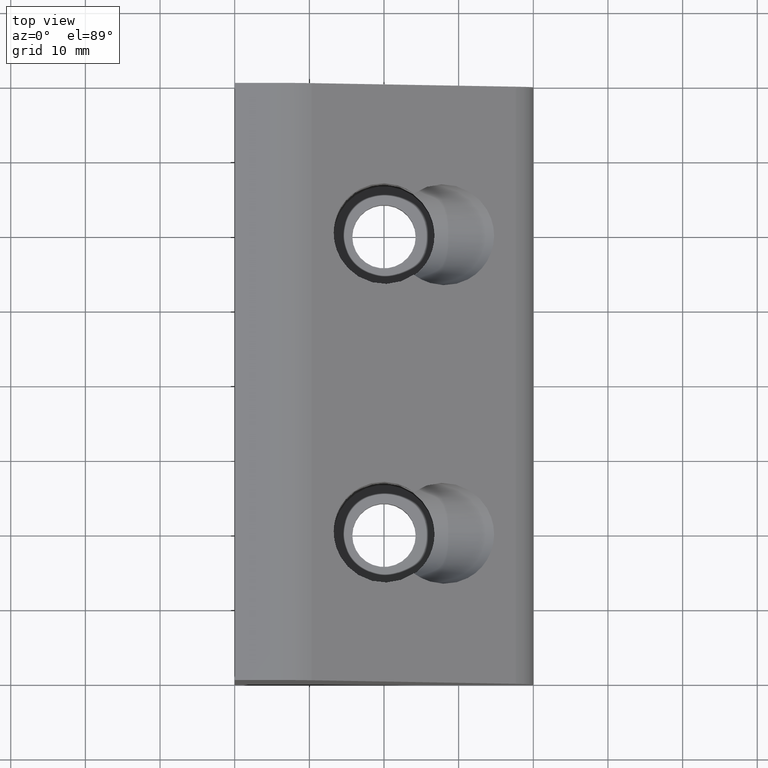
[diagram: clean part render]
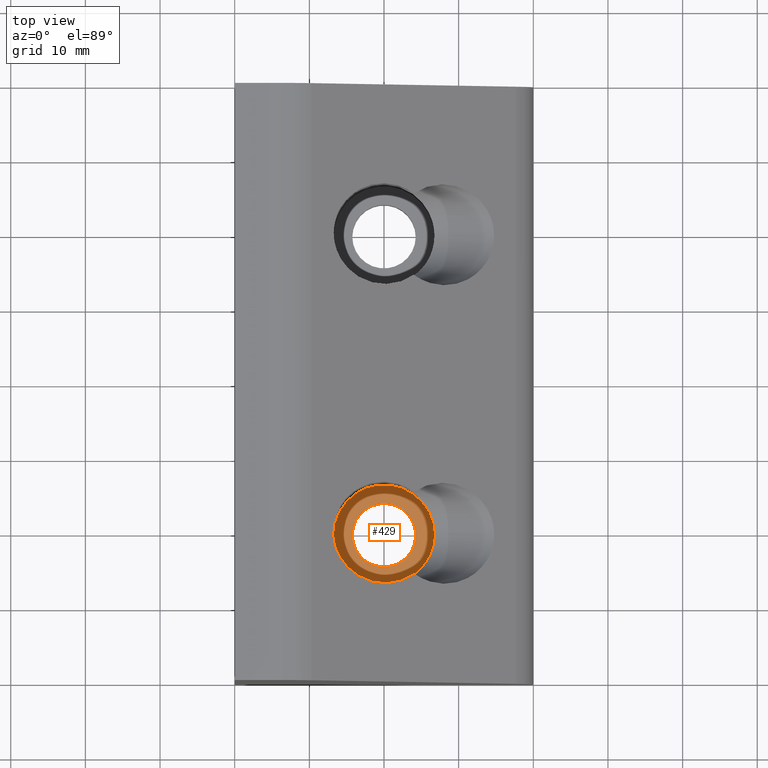
[diagram: same view with one face highlighted and labeled with its STEP entity id]
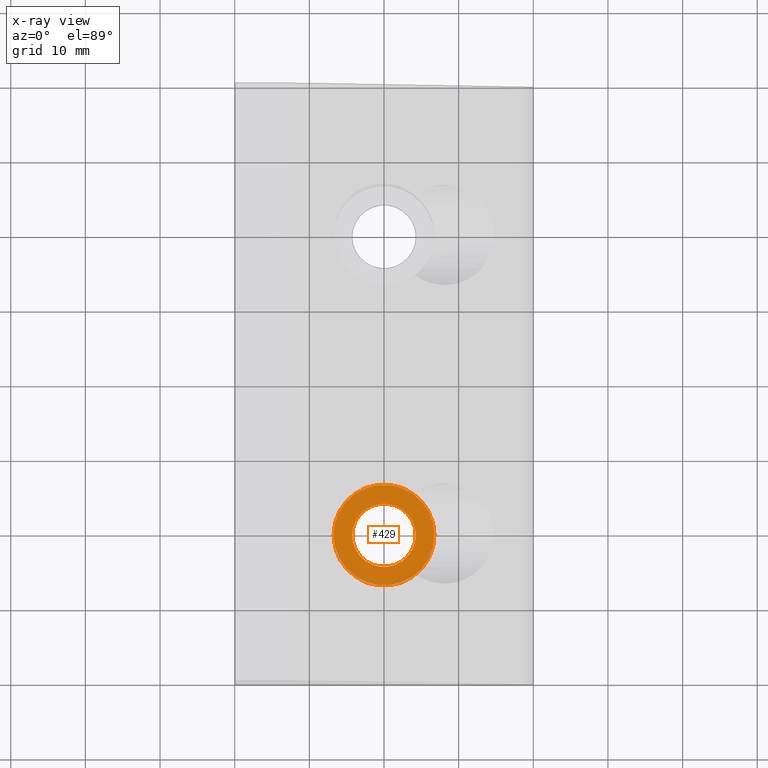
[diagram: x-ray of the same camera — body ghosted, the highlighted face saturated]
A machine part, top view. The second image highlights one B-rep face of the part: STEP entity #429.
The next image is the same camera in x-ray: the body ghosted, the highlighted face saturated — about 6% of this face is hidden behind the body in this view.
In plain terms, the highlighted planar face has unit normal (0, 0, -1).
Its self-contained STEP definition (entity closure, byte-faithful):
#21=FACE_BOUND('',#88,.T.);
#33=PLANE('',#511);
#56=FACE_OUTER_BOUND('',#87,.T.);
#87=EDGE_LOOP('',(#375));
#88=EDGE_LOOP('',(#376));
#99=CIRCLE('',#469,6.75);
#101=CIRCLE('',#472,4.25);
#189=VERTEX_POINT('',#685);
#191=VERTEX_POINT('',#691);
#230=EDGE_CURVE('',#189,#189,#99,.T.);
#233=EDGE_CURVE('',#191,#191,#101,.T.);
#375=ORIENTED_EDGE('',*,*,#230,.T.);
#376=ORIENTED_EDGE('',*,*,#233,.F.);
#429=ADVANCED_FACE('',(#56,#21),#33,.F.);
#469=AXIS2_PLACEMENT_3D('',#687,#545,#546);
#472=AXIS2_PLACEMENT_3D('',#693,#552,#553);
#511=AXIS2_PLACEMENT_3D('',#777,#649,#650);
#545=DIRECTION('center_axis',(0.,0.,1.));
#546=DIRECTION('ref_axis',(0.,-1.,0.));
#552=DIRECTION('center_axis',(0.,0.,1.));
#553=DIRECTION('ref_axis',(0.,-1.,0.));
#649=DIRECTION('center_axis',(0.,0.,-1.));
#650=DIRECTION('ref_axis',(-1.,0.,0.));
#685=CARTESIAN_POINT('',(26.75,-20.,5.));
#687=CARTESIAN_POINT('Origin',(20.,-20.,5.));
#691=CARTESIAN_POINT('',(24.25,-20.,5.00000000000002));
#693=CARTESIAN_POINT('Origin',(20.,-20.,5.00000000000002));
#777=CARTESIAN_POINT('Origin',(27.425,-12.575,5.));